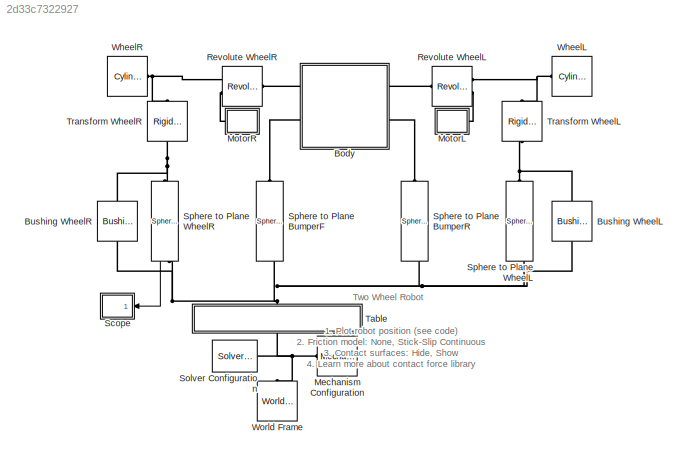
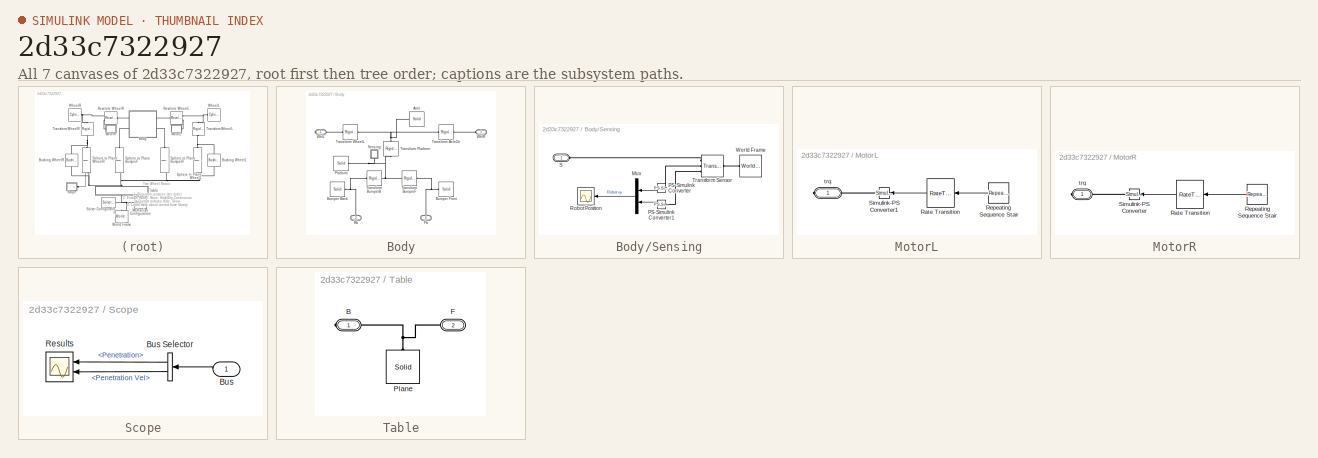
[diagram: thumbnail index - all 7 canvases of the model, root first then tree order]
MODEL slx_2d33c7322927
KIND model
CONFIG AbsTol = 1e-5
CONFIG EnableMultiTasking = on
CONFIG FixedStep = 1e-3
CONFIG MaxStep = 0.01
CONFIG MinStep = auto
CONFIG RelTol = 1e-4
CONFIG SampleTimeConstraint = Unconstrained
CONFIG Solver = ode23t
CONFIG SolverName = ode23t
CONFIG StartFcn = tic;
CONFIG StartTime = 0.0
CONFIG StopFcn = Elapsed_Sim_Time = toc;\ndisp(['Elapsed Sim Time = ' num2str(Elapsed_Sim_Time)]);\n
CONFIG StopTime = 24
WORKSPACE source: MATLAB code (in-file)
WORKSPACE code: whl.rad = 0.025;
WORKSPACE code: whl.thickness = 0.005;
WORKSPACE code: axle.length = 0.2;
WORKSPACE code: axle.radius = 0.005;
WORKSPACE code: platform.radius = 0.15;
WORKSPACE code: platform.thickness = 0.005;
WORKSPACE code: platform.offset = -0.01;
WORKSPACE code: bumper.rad = platform.offset+whl.rad;
WORKSPACE code: table.length = 1;
WORKSPACE code: table.thickness = 0.01;
WORKSPACE code: tableWhl.contact.k = 1e3;
WORKSPACE code: tableWhl.contact.b = 1e2;
WORKSPACE code: steel.density = 8000; %kg/m^3
WORKSPACE code: start_pos.x = -0.2;
WORKSPACE code: start_pos.y = 0.2;
WORKSPACE l_whl_trq = [0 0 0 0.5 0 0 0 -0.5 1.0 0 0 0 -1.0 0.5 0 0 0 -0.5 -1.5 0 0 0 1.5].'*0.0005
WORKSPACE r_whl_trq = [0 0 0 2.0 0 0 0 -2.0 1.0 0 0 0 -1.0 1.0 0 0 0 -1.0 -1.5 0 0 0 1.5].'*0.0005
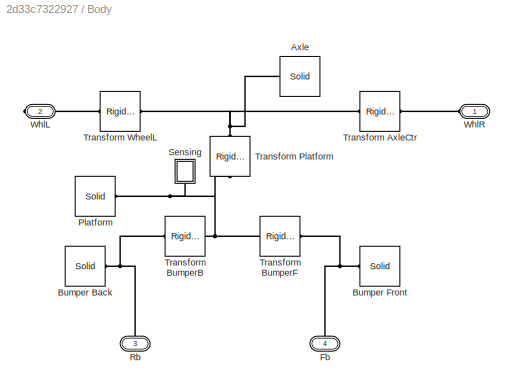
BLOCK [SubSystem] Body
  Ports = [0, 0, 0, 0, 0, 2, 2]
  RequestExecContextInheritance = off
  Tag = CustomStyle
BLOCK [Reference] Body/Axle  REF=sm_lib/Body Elements/Solid
  Ports = [0, 0, 0, 0, 0, 0, 1]
  SourceBlock = sm_lib/Body Elements/Solid
  SourceProductBaseCode = MS
  SourceProductName = Simscape Multibody
  SourceType = Solid
BLOCK [Reference] Body/Bumper Back  REF=sm_lib/Body Elements/Solid
  Ports = [0, 0, 0, 0, 0, 0, 1]
  SourceBlock = sm_lib/Body Elements/Solid
  SourceProductBaseCode = MS
  SourceProductName = Simscape Multibody
  SourceType = Solid
BLOCK [Reference] Body/Bumper Front  REF=sm_lib/Body Elements/Solid
  Ports = [0, 0, 0, 0, 0, 0, 1]
  SourceBlock = sm_lib/Body Elements/Solid
  SourceProductBaseCode = MS
  SourceProductName = Simscape Multibody
  SourceType = Solid
BLOCK [PMIOPort] Body/Fb
  Port = 4
  Side = Right
BLOCK [Reference] Body/Platform  REF=sm_lib/Body Elements/Solid
  Ports = [0, 0, 0, 0, 0, 0, 1]
  SourceBlock = sm_lib/Body Elements/Solid
  SourceProductBaseCode = MS
  SourceProductName = Simscape Multibody
  SourceType = Solid
BLOCK [PMIOPort] Body/Rb
  Port = 3
  Side = Left
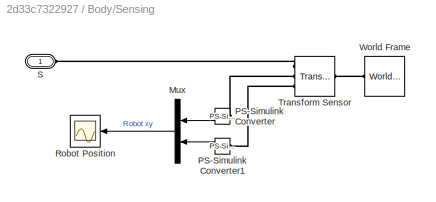
BLOCK [SubSystem] Body/Sensing
  Ports = [0, 0, 0, 0, 0, 1]
  RequestExecContextInheritance = off
BLOCK [Mux] Body/Sensing/Mux
  DisplayOption = bar
  Inputs = 2
  Ports = [2, 1]
BLOCK [Reference] Body/Sensing/PS-Simulink Converter  REF=nesl_utility/PS-Simulink
Converter
  Ports = [0, 1, 0, 0, 0, 1]
  SourceBlock = nesl_utility/PS-Simulink\nConverter
  SourceProductBaseCode = SS
  SourceProductName = Simscape
  SourceType = PS-Simulink\nConverter
BLOCK [Reference] Body/Sensing/PS-Simulink Converter1  REF=nesl_utility/PS-Simulink
Converter
  Ports = [0, 1, 0, 0, 0, 1]
  SourceBlock = nesl_utility/PS-Simulink\nConverter
  SourceProductBaseCode = SS
  SourceProductName = Simscape
  SourceType = PS-Simulink\nConverter
BLOCK [Scope] Body/Sensing/Robot Position
  Floating = off
  NumInputPorts = 1
  Ports = [1]
  ScopeSpecificationString = C++SS(StrPVP('Location','[691, 76, 1015, 315]'),StrPVP('Open','off'),MxPVP('AxesTitles',53,'struct(''axes1'',''%<SignalLabel>'')'),MxPVP('ScopeGraphics',56,'struct(''FigureColor'',''[0.501960784313725 0.501960784313725 0.501960784313725]'',''AxesColor'',''[0 0 0]'',''AxesTickColor'',''[1 1 1]'',''LineColors'',''[1 1 0;1 0 1;0 1 1;1 0 0;0 1 0;0 0 1]'',''LineStyles'',''-|-|-|-|-|-'',''LineWidths'','...<+318ch>
BLOCK [PMIOPort] Body/Sensing/S
  Side = Left
BLOCK [Reference] Body/Sensing/Transform Sensor  REF=sm_lib/Frames and
Transforms/Transform
Sensor
  Ports = [0, 0, 0, 0, 0, 1, 3]
  SourceBlock = sm_lib/Frames and\nTransforms/Transform\nSensor
  SourceProductBaseCode = MS
  SourceProductName = Simscape Multibody
  SourceType = Transform\nSensor
BLOCK [Reference] Body/Sensing/World Frame  REF=sm_lib/Frames and
Transforms/World Frame
  Ports = [0, 0, 0, 0, 0, 0, 1]
  SourceBlock = sm_lib/Frames and\nTransforms/World Frame
  SourceProductBaseCode = MS
  SourceProductName = Simscape Multibody
  SourceType = World Frame
BLOCK [Reference] Body/Transform AxleCtr  REF=sm_lib/Frames and
Transforms/Rigid
Transform
  Ports = [0, 0, 0, 0, 0, 1, 1]
  SourceBlock = sm_lib/Frames and\nTransforms/Rigid\nTransform
  SourceProductBaseCode = MS
  SourceProductName = Simscape Multibody
  SourceType = Rigid\nTransform
BLOCK [Reference] Body/Transform BumperB  REF=sm_lib/Frames and
Transforms/Rigid
Transform
  Ports = [0, 0, 0, 0, 0, 1, 1]
  SourceBlock = sm_lib/Frames and\nTransforms/Rigid\nTransform
  SourceProductBaseCode = MS
  SourceProductName = Simscape Multibody
  SourceType = Rigid\nTransform
BLOCK [Reference] Body/Transform BumperF  REF=sm_lib/Frames and
Transforms/Rigid
Transform
  Ports = [0, 0, 0, 0, 0, 1, 1]
  SourceBlock = sm_lib/Frames and\nTransforms/Rigid\nTransform
  SourceProductBaseCode = MS
  SourceProductName = Simscape Multibody
  SourceType = Rigid\nTransform
BLOCK [Reference] Body/Transform Platform  REF=sm_lib/Frames and
Transforms/Rigid
Transform
  Ports = [0, 0, 0, 0, 0, 1, 1]
  SourceBlock = sm_lib/Frames and\nTransforms/Rigid\nTransform
  SourceProductBaseCode = MS
  SourceProductName = Simscape Multibody
  SourceType = Rigid\nTransform
BLOCK [Reference] Body/Transform WheelL  REF=sm_lib/Frames and
Transforms/Rigid
Transform
  Ports = [0, 0, 0, 0, 0, 1, 1]
  SourceBlock = sm_lib/Frames and\nTransforms/Rigid\nTransform
  SourceProductBaseCode = MS
  SourceProductName = Simscape Multibody
  SourceType = Rigid\nTransform
BLOCK [PMIOPort] Body/WhlL
  Port = 2
  Side = Right
BLOCK [PMIOPort] Body/WhlR
  Side = Left
BLOCK [Reference] Bushing WheelL  REF=sm_lib/Joints/Bushing Joint
  Ports = [0, 0, 0, 0, 0, 1, 1]
  SourceBlock = sm_lib/Joints/Bushing Joint
  SourceProductBaseCode = MS
  SourceProductName = Simscape Multibody
  SourceType = Bushing Joint
BLOCK [Reference] Bushing WheelR  REF=sm_lib/Joints/Bushing Joint
  Ports = [0, 0, 0, 0, 0, 1, 1]
  SourceBlock = sm_lib/Joints/Bushing Joint
  SourceProductBaseCode = MS
  SourceProductName = Simscape Multibody
  SourceType = Bushing Joint
BLOCK [Reference] Mechanism Configuration  REF=sm_lib/Utilities/Mechanism
Configuration
  Ports = [0, 0, 0, 0, 0, 0, 1]
  SourceBlock = sm_lib/Utilities/Mechanism\nConfiguration
  SourceProductBaseCode = MS
  SourceProductName = Simscape Multibody
  SourceType = Mechanism\nConfiguration
BLOCK [SubSystem] MotorL
  Ports = [0, 0, 0, 0, 0, 0, 1]
  RequestExecContextInheritance = off
BLOCK [RateTransition] MotorL/Rate Transition
BLOCK [Reference] MotorL/Repeating Sequence Stair  REF=simulink/Sources/Repeating
Sequence
Stair
  Ports = [0, 1]
  SourceBlock = simulink/Sources/Repeating\nSequence\nStair
  SourceProductBaseCode = SL
  SourceProductName = Simulink
  SourceType = Repeating Sequence Stair
BLOCK [Reference] MotorL/Simulink-PS Converter1  REF=nesl_utility/Simulink-PS
Converter
  Ports = [1, 0, 0, 0, 0, 0, 1]
  SourceBlock = nesl_utility/Simulink-PS\nConverter
  SourceProductBaseCode = SS
  SourceProductName = Simscape
  SourceType = Simulink-PS\nConverter
BLOCK [PMIOPort] MotorL/trq
  Side = Right
BLOCK [SubSystem] MotorR
  Ports = [0, 0, 0, 0, 0, 0, 1]
  RequestExecContextInheritance = off
BLOCK [RateTransition] MotorR/Rate Transition
BLOCK [Reference] MotorR/Repeating Sequence Stair  REF=simulink/Sources/Repeating
Sequence
Stair
  Ports = [0, 1]
  SourceBlock = simulink/Sources/Repeating\nSequence\nStair
  SourceProductBaseCode = SL
  SourceProductName = Simulink
  SourceType = Repeating Sequence Stair
BLOCK [Reference] MotorR/Simulink-PS Converter  REF=nesl_utility/Simulink-PS
Converter
  Ports = [1, 0, 0, 0, 0, 0, 1]
  SourceBlock = nesl_utility/Simulink-PS\nConverter
  SourceProductBaseCode = SS
  SourceProductName = Simscape
  SourceType = Simulink-PS\nConverter
BLOCK [PMIOPort] MotorR/trq
  Side = Right
BLOCK [Reference] Revolute WheelL  REF=sm_lib/Joints/Revolute Joint
  Ports = [0, 0, 0, 0, 0, 2, 1]
  SourceBlock = sm_lib/Joints/Revolute Joint
  SourceProductBaseCode = MS
  SourceProductName = Simscape Multibody
  SourceType = Revolute Joint
BLOCK [Reference] Revolute WheelR  REF=sm_lib/Joints/Revolute Joint
  Ports = [0, 0, 0, 0, 0, 2, 1]
  SourceBlock = sm_lib/Joints/Revolute Joint
  SourceProductBaseCode = MS
  SourceProductName = Simscape Multibody
  SourceType = Revolute Joint
BLOCK [SubSystem] Scope
  Ports = [1]
  RequestExecContextInheritance = off
BLOCK [Inport] Scope/Bus
  IconDisplay = Port number
BLOCK [BusSelector] Scope/Bus Selector
  OutputAsBus = off
  OutputSignals = Penetration,Penetration Vel
  Ports = [1, 2]
BLOCK [Scope] Scope/Results
  Floating = off
  NumInputPorts = 2
  Ports = [2]
  ScopeSpecificationString = C++SS(StrPVP('Location','[705, 570, 1029, 907]'),StrPVP('Open','off'),StrPVP('ZoomMode','yonly'),MxPVP('AxesTitles',53,'struct(''axes1'',''%<SignalLabel>'',''axes2'',''%<SignalLabel>'')'),MxPVP('ScopeGraphics',56,'struct(''FigureColor'',''[0.501960784313725 0.501960784313725 0.501960784313725]'',''AxesColor'',''[0 0 0]'',''AxesTickColor'',''[1 1 1]'',''LineColors'',''[1 1 0;1 0 1;0 1 1;1 0 0;0 1 0...<+422ch>
  Tag = PublishScope
BLOCK [Reference] Solver Configuration  REF=nesl_utility/Solver
Configuration
  Ports = [0, 0, 0, 0, 0, 0, 1]
  SourceBlock = nesl_utility/Solver\nConfiguration
  SourceProductBaseCode = SS
  SourceProductName = Simscape
  SourceType = Solver\nConfiguration
BLOCK [Reference] Sphere to Plane BumperF  REF=Contact_Forces_Lib/3D/Sphere to Plane Force
  Ports = [0, 1, 0, 0, 0, 1, 1]
  SourceBlock = Contact_Forces_Lib/3D/Sphere to Plane Force
  SourceProductName = Simscape Multibody Contact Forces Library
  SourceType = Sphere to Plane Force
BLOCK [Reference] Sphere to Plane BumperR  REF=Contact_Forces_Lib/3D/Sphere to Plane Force
  Ports = [0, 1, 0, 0, 0, 1, 1]
  SourceBlock = Contact_Forces_Lib/3D/Sphere to Plane Force
  SourceProductName = Simscape Multibody Contact Forces Library
  SourceType = Sphere to Plane Force
BLOCK [Reference] Sphere to Plane WheelL  REF=Contact_Forces_Lib/3D/Sphere to Plane Force
  Ports = [0, 1, 0, 0, 0, 1, 1]
  SourceBlock = Contact_Forces_Lib/3D/Sphere to Plane Force
  SourceProductName = Simscape Multibody Contact Forces Library
  SourceType = Sphere to Plane Force
BLOCK [Reference] Sphere to Plane WheelR  REF=Contact_Forces_Lib/3D/Sphere to Plane Force
  Ports = [0, 1, 0, 0, 0, 1, 1]
  SourceBlock = Contact_Forces_Lib/3D/Sphere to Plane Force
  SourceProductName = Simscape Multibody Contact Forces Library
  SourceType = Sphere to Plane Force
BLOCK [SubSystem] Table
  Ports = [0, 0, 0, 0, 0, 1, 1]
  RequestExecContextInheritance = off
  Tag = CustomStyle
BLOCK [PMIOPort] Table/B
  Side = Right
BLOCK [PMIOPort] Table/F
  Port = 2
  Side = Left
BLOCK [Reference] Table/Plane  REF=sm_lib/Body Elements/Solid
  Ports = [0, 0, 0, 0, 0, 0, 1]
  SourceBlock = sm_lib/Body Elements/Solid
  SourceProductBaseCode = MS
  SourceProductName = Simscape Multibody
  SourceType = Solid
BLOCK [Reference] Transform WheelL  REF=sm_lib/Frames and
Transforms/Rigid
Transform
  Ports = [0, 0, 0, 0, 0, 1, 1]
  SourceBlock = sm_lib/Frames and\nTransforms/Rigid\nTransform
  SourceProductBaseCode = MS
  SourceProductName = Simscape Multibody
  SourceType = Rigid\nTransform
BLOCK [Reference] Transform WheelR  REF=sm_lib/Frames and
Transforms/Rigid
Transform
  Ports = [0, 0, 0, 0, 0, 1, 1]
  SourceBlock = sm_lib/Frames and\nTransforms/Rigid\nTransform
  SourceProductBaseCode = MS
  SourceProductName = Simscape Multibody
  SourceType = Rigid\nTransform
BLOCK [Reference] WheelL  REF=Parts_Lib/Cylinder
  Ports = [0, 0, 0, 0, 0, 1]
  SourceBlock = Parts_Lib/Cylinder
  SourceType = Solid Cylinder with Markings
  Tag = CustomStyle
BLOCK [Reference] WheelR  REF=Parts_Lib/Cylinder
  Ports = [0, 0, 0, 0, 0, 1]
  SourceBlock = Parts_Lib/Cylinder
  SourceType = Solid Cylinder with Markings
  Tag = CustomStyle
BLOCK [Reference] World Frame  REF=sm_lib/Frames and
Transforms/World Frame
  Ports = [0, 0, 0, 0, 0, 0, 1]
  SourceBlock = sm_lib/Frames and\nTransforms/World Frame
  SourceProductBaseCode = MS
  SourceProductName = Simscape Multibody
  SourceType = World Frame
ANNOTATION (root): 1. Plot robot position ( see code ) 2. Friction model: None , Stick-Slip Continuous 3. Contact surfaces: Hide , Show 4. Learn more about contact force library
ANNOTATION (root): Two Wheel Robot
LINE Body/Sensing/Mux:1 -> Body/Sensing/Robot Position:1
LINE Body/Sensing/PS-Simulink Converter1:1 -> Body/Sensing/Mux:2
LINE Body/Sensing/PS-Simulink Converter:1 -> Body/Sensing/Mux:1
LINE MotorL/Rate Transition:1 -> MotorL/Simulink-PS Converter1:1
LINE MotorL/Repeating Sequence Stair:1 -> MotorL/Rate Transition:1
LINE MotorR/Rate Transition:1 -> MotorR/Simulink-PS Converter:1
LINE MotorR/Repeating Sequence Stair:1 -> MotorR/Rate Transition:1
LINE Scope/Bus Selector:1 -> Scope/Results:1
LINE Scope/Bus Selector:2 -> Scope/Results:2
LINE Scope/Bus:1 -> Scope/Bus Selector:1
LINE Sphere to Plane WheelR:1 -> Scope:1
PNET net1: Body/Axle:RConn1 -- Body/Transform AxleCtr:RConn1 -- Body/Transform Platform:LConn1 -- Body/Transform WheelL:LConn1
PNET net2: Body/Bumper Back:RConn1 -- Body/Rb:RConn1 -- Body/Transform BumperB:LConn1
PNET net3: Body/Bumper Front:RConn1 -- Body/Fb:RConn1 -- Body/Transform BumperF:RConn1
PNET net4: Body/Platform:RConn1 -- Body/Sensing:LConn1 -- Body/Transform BumperB:RConn1 -- Body/Transform BumperF:LConn1 -- Body/Transform Platform:RConn1
PLINE Body/Sensing/PS-Simulink Converter1:LConn1 -- Body/Sensing/Transform Sensor:RConn3
PLINE Body/Sensing/PS-Simulink Converter:LConn1 -- Body/Sensing/Transform Sensor:RConn2
PLINE Body/Sensing/S:RConn1 -- Body/Sensing/Transform Sensor:RConn1
PLINE Body/Sensing/Transform Sensor:LConn1 -- Body/Sensing/World Frame:RConn1
PLINE Body/Transform AxleCtr:LConn1 -- Body/WhlR:RConn1
PLINE Body/Transform WheelL:RConn1 -- Body/WhlL:RConn1
PLINE Body:LConn1 -- Revolute WheelR:RConn1
PLINE Body:LConn2 -- Sphere to Plane BumperF:LConn1
PLINE Body:RConn1 -- Revolute WheelL:RConn1
PLINE Body:RConn2 -- Sphere to Plane BumperR:LConn1
PNET net5: Bushing WheelL:LConn1 -- Sphere to Plane WheelL:LConn1 -- Transform WheelL:LConn1
PNET net6: Bushing WheelL:RConn1 -- Bushing WheelR:RConn1 -- Sphere to Plane BumperF:RConn1 -- Sphere to Plane BumperR:RConn1 -- Sphere to Plane WheelL:RConn1 -- Sphere to Plane WheelR:RConn1 -- Table:LConn1
PNET net7: Bushing WheelR:LConn1 -- Sphere to Plane WheelR:LConn1 -- Transform WheelR:LConn1
PNET net8: Mechanism Configuration:RConn1 -- Solver Configuration:RConn1 -- Table:RConn1 -- World Frame:RConn1
PLINE MotorL/Simulink-PS Converter1:RConn1 -- MotorL/trq:RConn1
PLINE MotorL:RConn1 -- Revolute WheelL:LConn2
PLINE MotorR/Simulink-PS Converter:RConn1 -- MotorR/trq:RConn1
PLINE MotorR:RConn1 -- Revolute WheelR:LConn2
PNET net9: Revolute WheelL:LConn1 -- Transform WheelL:RConn1 -- WheelL:LConn1
PNET net10: Revolute WheelR:LConn1 -- Transform WheelR:RConn1 -- WheelR:LConn1
PNET net11: Table/B:RConn1 -- Table/F:RConn1 -- Table/Plane:RConn1
note: PNET lines group multi-terminal physical nets as a canonical sorted terminal list (undirected conserving connections); 2-terminal nets keep the pairwise PLINE form
